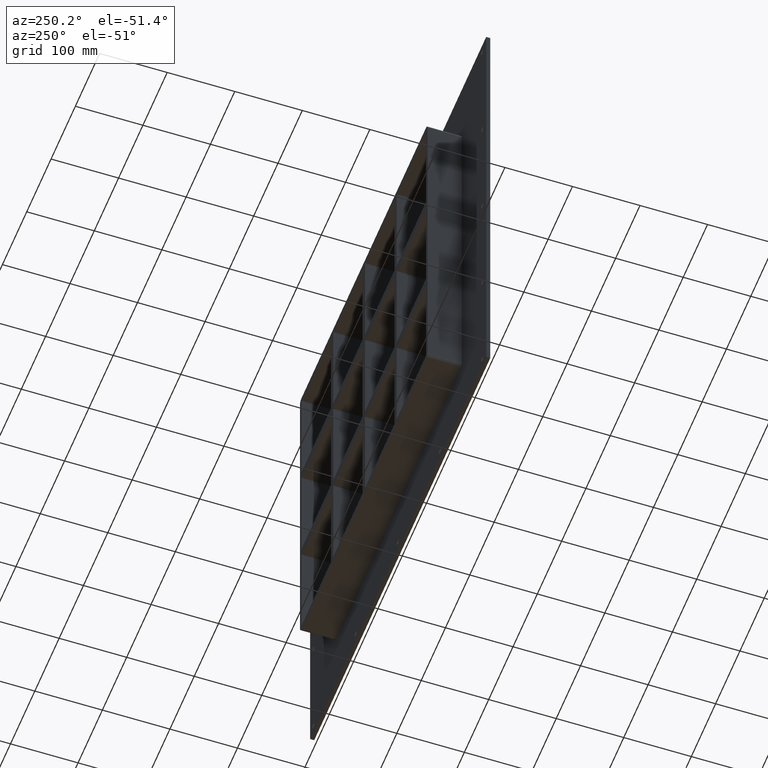
[diagram: clean part render]
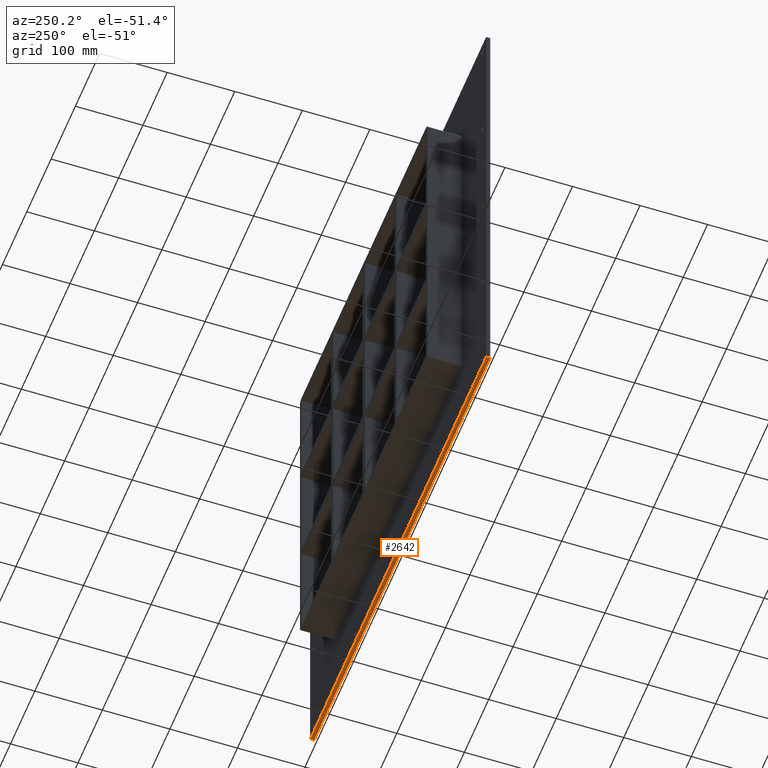
[diagram: same view with one face highlighted and labeled with its STEP entity id]
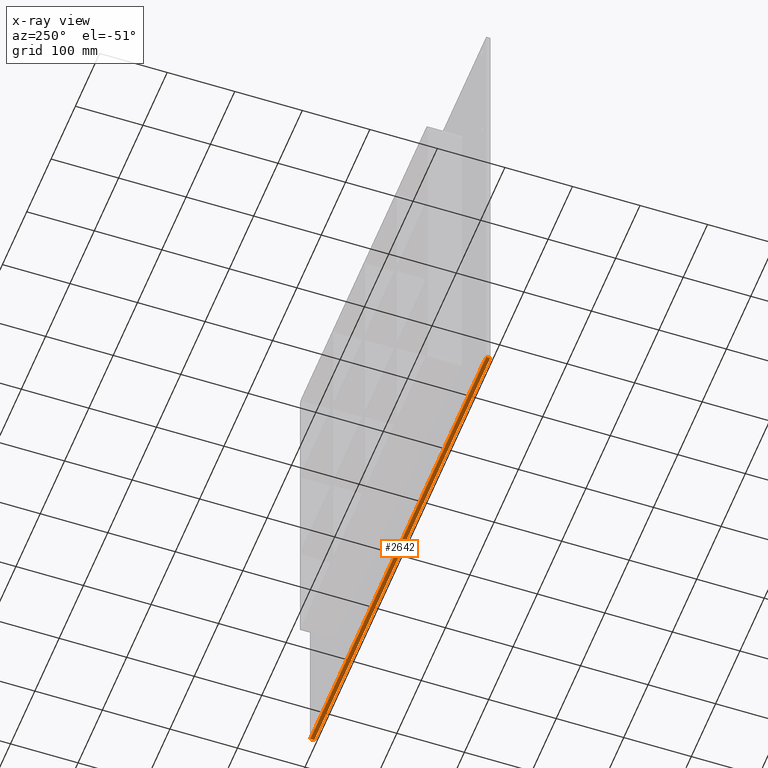
[diagram: x-ray of the same camera — body ghosted, the highlighted face saturated]
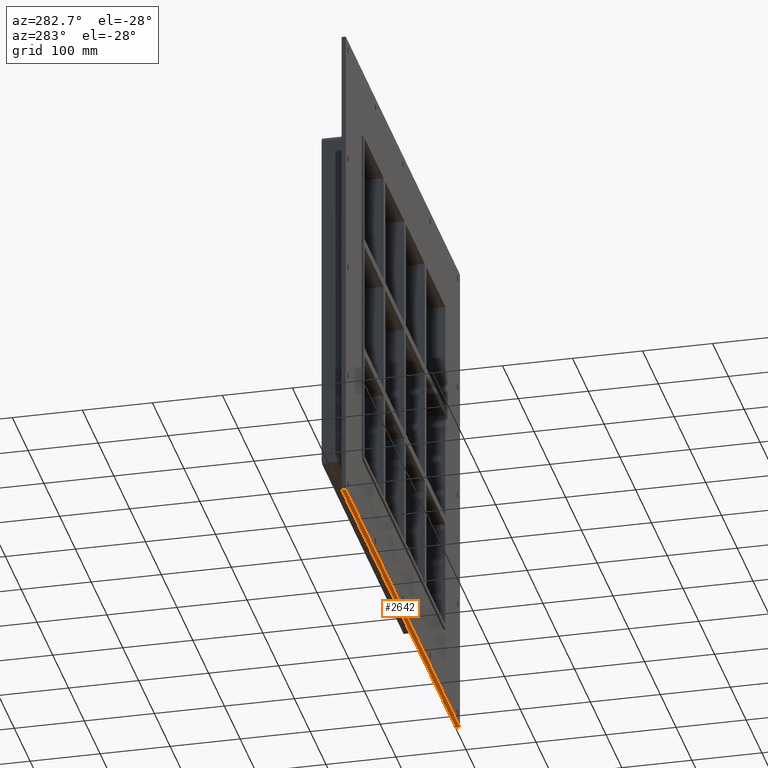
[diagram: same view with one face highlighted and labeled with its STEP entity id]
A machine part, auxiliary view. The second image highlights one B-rep face of the part: STEP entity #2642.
The next image is the same camera in x-ray: the body ghosted, the highlighted face saturated — about 0% of this face is hidden behind the body in this view.
A second angle (auxiliary view) of the same face is appended — the face is thin or edge-on in the first view.
In plain terms, the highlighted planar face has unit normal (0, 0, -1).
Its self-contained STEP definition (entity closure, byte-faithful):
#2303=CARTESIAN_POINT('',(362.0,6.000000000000001,-357.24999999999989));
#2304=VERTEX_POINT('',#2303);
#2311=CARTESIAN_POINT('',(-362.0,6.000000000000001,-357.24999999999989));
#2312=VERTEX_POINT('',#2311);
#2313=CARTESIAN_POINT('',(361.99999999999994,6.000000000000001,-357.24999999999994));
#2314=DIRECTION('',(-1.0,0.0,0.0));
#2315=VECTOR('',#2314,724.0);
#2316=LINE('',#2313,#2315);
#2317=EDGE_CURVE('',#2304,#2312,#2316,.T.);
#2461=CARTESIAN_POINT('',(-362.0,0.0,-357.24999999999994));
#2462=VERTEX_POINT('',#2461);
#2469=CARTESIAN_POINT('',(361.99999999999994,0.0,-357.24999999999994));
#2470=VERTEX_POINT('',#2469);
#2471=CARTESIAN_POINT('',(361.99999999999994,0.0,-357.24999999999994));
#2472=DIRECTION('',(-1.0,0.0,0.0));
#2473=VECTOR('',#2472,724.0);
#2474=LINE('',#2471,#2473);
#2475=EDGE_CURVE('',#2470,#2462,#2474,.T.);
#2617=CARTESIAN_POINT('',(-362.0,0.0,-357.24999999999994));
#2618=DIRECTION('',(0.0,1.0,0.0));
#2619=VECTOR('',#2618,6.000000000000001);
#2620=LINE('',#2617,#2619);
#2621=EDGE_CURVE('',#2462,#2312,#2620,.T.);
#2626=CARTESIAN_POINT('',(361.99999999999994,0.0,-357.24999999999994));
#2627=DIRECTION('',(0.0,0.0,-1.0));
#2628=DIRECTION('',(-1.0,0.0,0.0));
#2629=AXIS2_PLACEMENT_3D('',#2626,#2627,#2628);
#2630=PLANE('',#2629);
#2631=ORIENTED_EDGE('',*,*,#2475,.T.);
#2632=ORIENTED_EDGE('',*,*,#2621,.T.);
#2633=ORIENTED_EDGE('',*,*,#2317,.F.);
#2634=CARTESIAN_POINT('',(361.99999999999994,0.0,-357.24999999999994));
#2635=DIRECTION('',(0.0,1.0,0.0));
#2636=VECTOR('',#2635,6.000000000000001);
#2637=LINE('',#2634,#2636);
#2638=EDGE_CURVE('',#2470,#2304,#2637,.T.);
#2639=ORIENTED_EDGE('',*,*,#2638,.F.);
#2640=EDGE_LOOP('',(#2631,#2632,#2633,#2639));
#2641=FACE_OUTER_BOUND('',#2640,.T.);
#2642=ADVANCED_FACE('',(#2641),#2630,.T.);